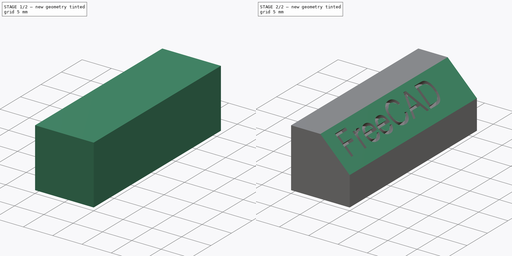
[diagram: build sequence overview — one tinted view per stage of 2, left to right]
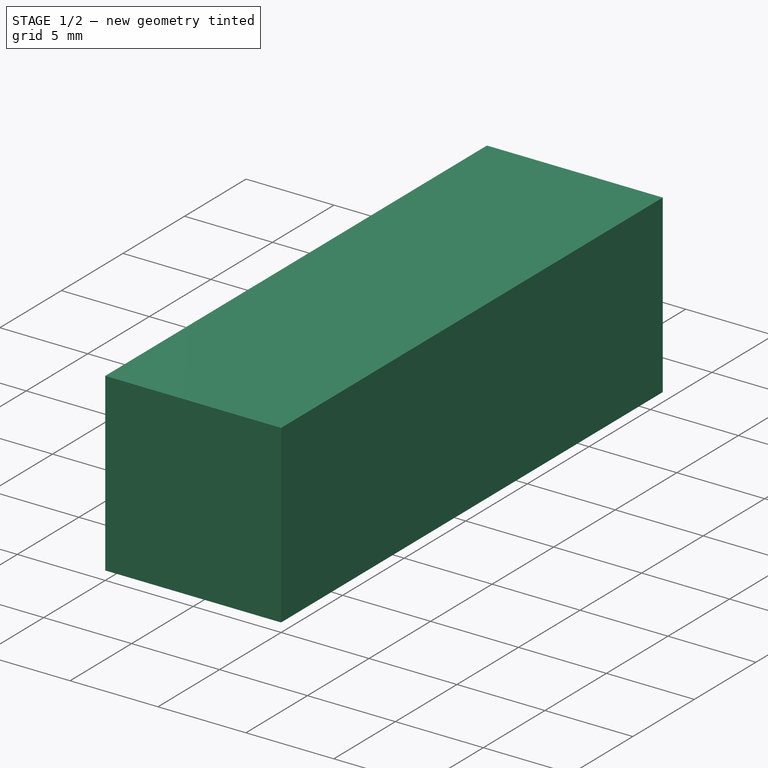
[diagram: stage 1 of 2 — iso view after this stage's code; geometry added in this stage tinted green]
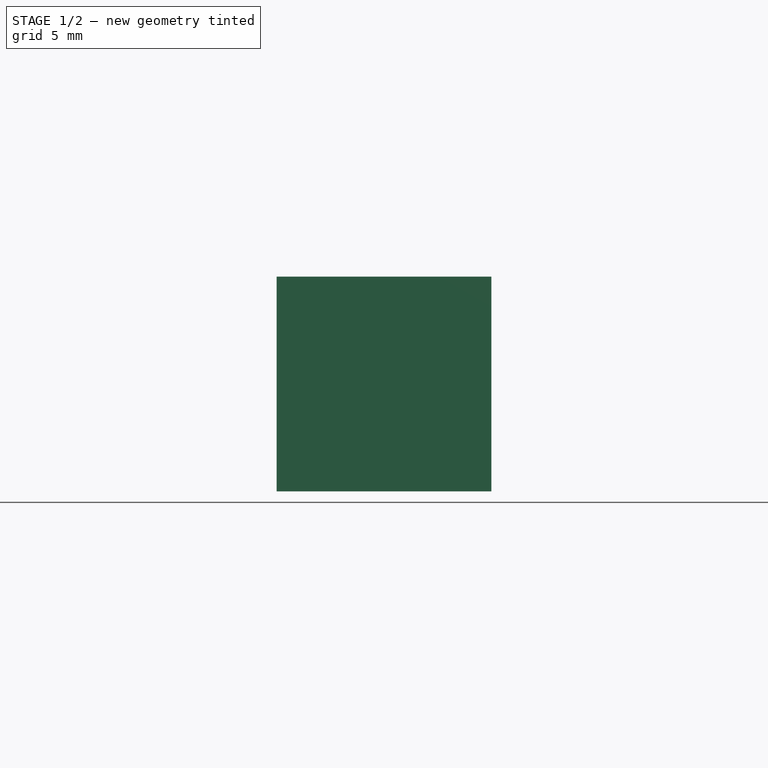
[diagram: stage 1 of 2 — front view after this stage's code; geometry added in this stage tinted green]
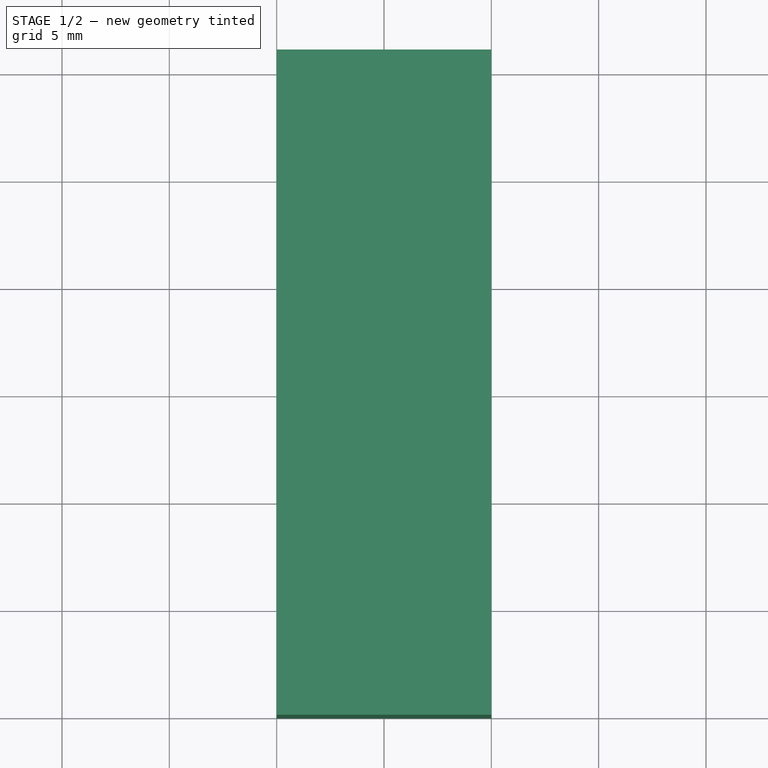
[diagram: stage 1 of 2 — top view after this stage's code; geometry added in this stage tinted green]
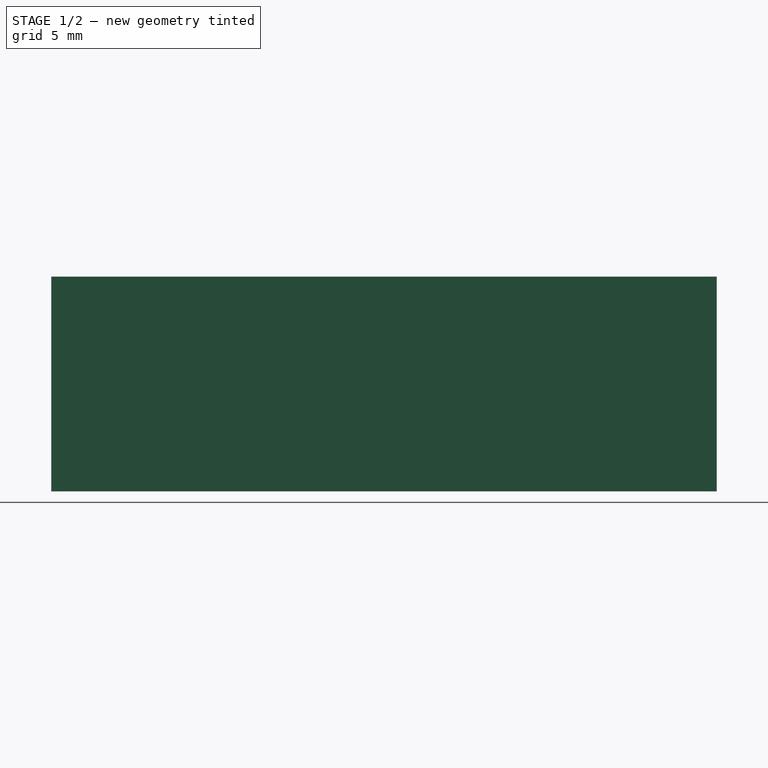
[diagram: stage 1 of 2 — right view after this stage's code; geometry added in this stage tinted green]
FCSTD DOCUMENT  (FreeCAD 0.17R13541 (Git))
Label: 201905191
License: All rights reserved
LicenseURL: http://en.wikipedia.org/wiki/All_rights_reserved
objects: Part::Box×1, Part::Chamfer×1, Part::Part2DObjectPython×1, Part::Extrusion×1, Sketcher::SketchObject×1, Part::Cut×1
note: 6 computed .brp shape members not serialized (recipe doc carries the construction recipe); baked Part::Feature solids carry a one-line shape summary decoded from their .brp

FEATURE [Part::Box] Box  label="立方体"
  AttacherType = Attacher::AttachEngine3D
  Height = 10
  Length = 10
  Width = 31
FEATURE [Part::Part2DObjectPython] ShapeString  # Draft 2D object (typed FeaturePython)
  FontFile = <path>
  Size = 5
  String = FreeCAD
  Tracking = 0
FEATURE [Part::Extrusion] Extrude
  Base = -> ShapeString
  Dir = (0,0,1)
  DirMode = 2
  FaceMakerClass = Part::FaceMakerBullseye
  LengthFwd = 1
  LengthRev = 0
  Placement = pos=(7.82882,2.03353,5.75697) rot=(0.357407,0.357407,0.862856;1.71777rad)
  Solid = true
  Symmetric = false
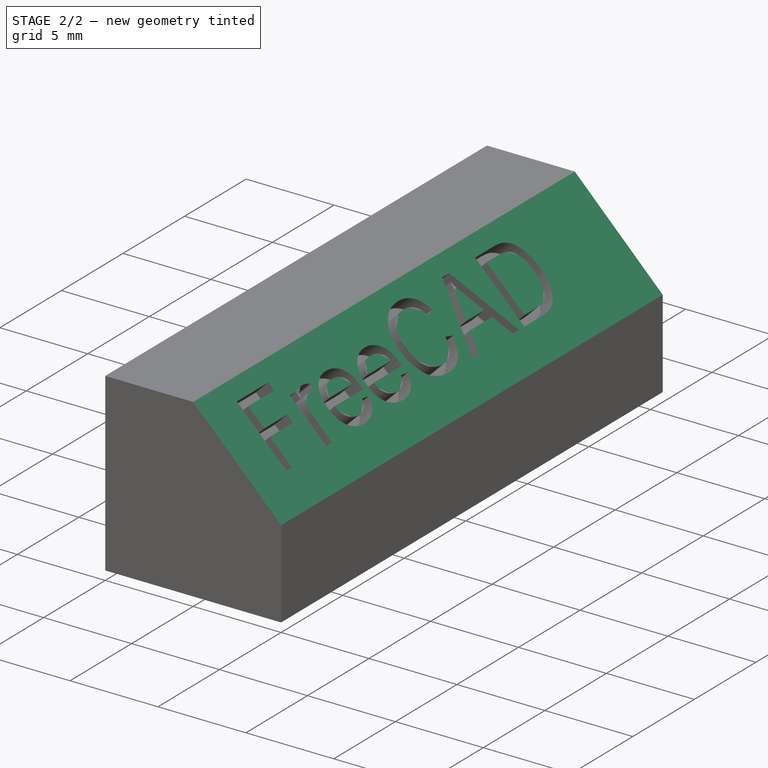
[diagram: stage 2 of 2 — iso view after this stage's code; geometry added in this stage tinted green]
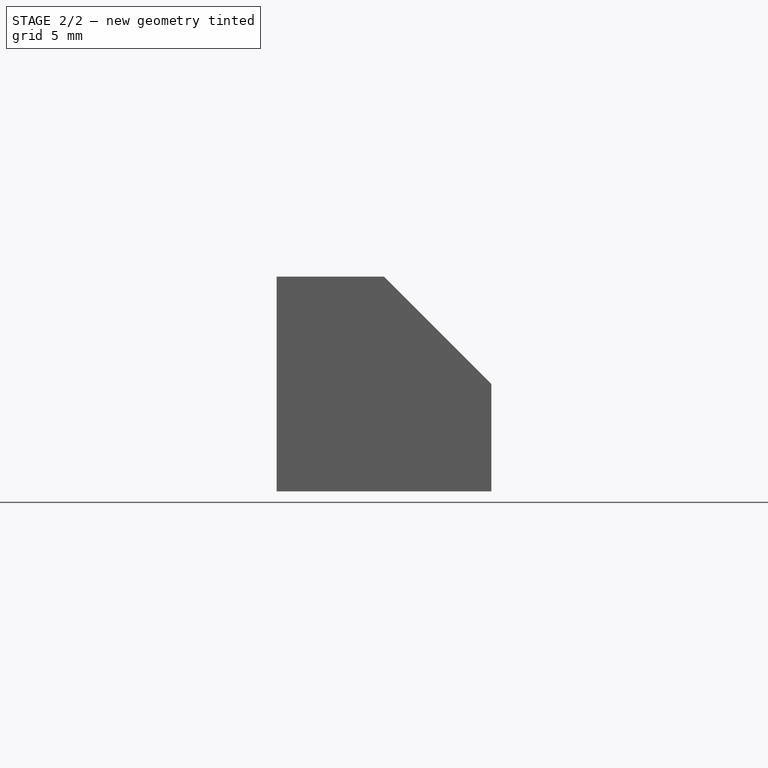
[diagram: stage 2 of 2 — front view after this stage's code; geometry added in this stage tinted green]
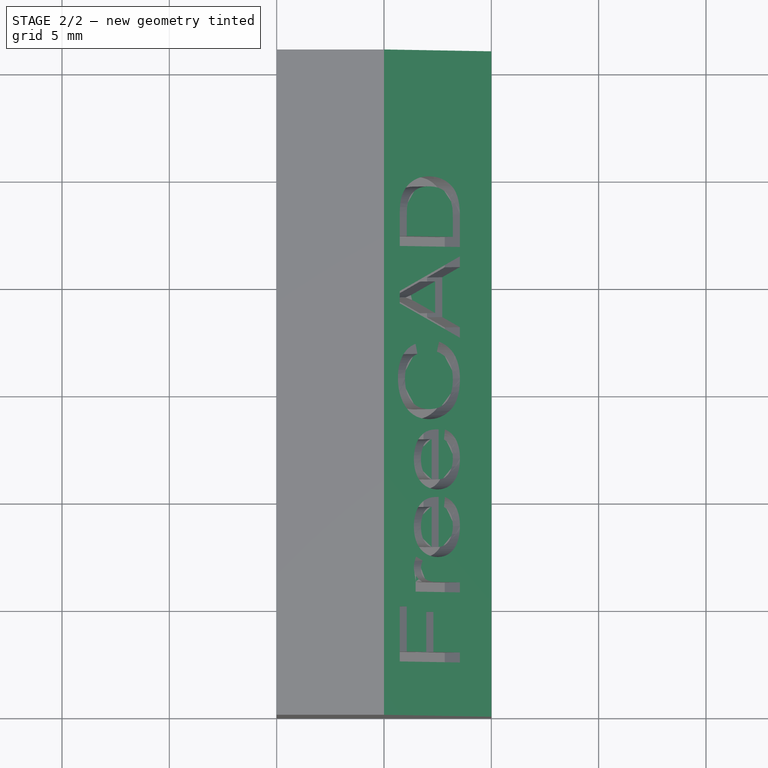
[diagram: stage 2 of 2 — top view after this stage's code; geometry added in this stage tinted green]
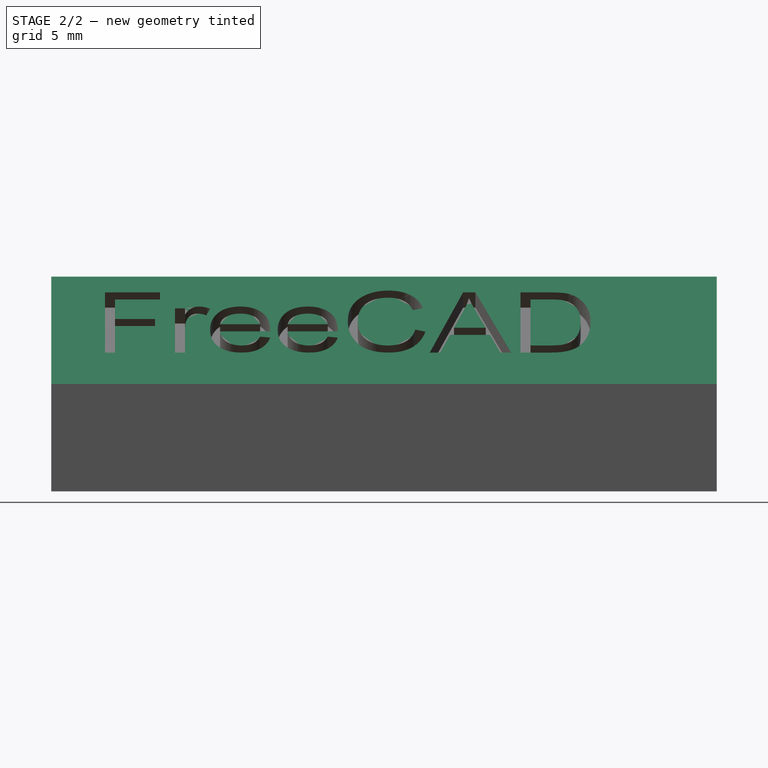
[diagram: stage 2 of 2 — right view after this stage's code; geometry added in this stage tinted green]
FEATURE [Part::Chamfer] Chamfer
  Base = -> Box
  Edges = 1 edges r=5: [Edge6]
FEATURE [Sketcher::SketchObject] Sketch
  MapMode = 5
  Placement = pos=(7.5,0,7.5) rot=(0.357407,0.357407,0.862856;1.71777rad)
  Support = -> [Chamfer]
  sketch-geometry (1):
    g0: LineSegment StartX=2.5 StartY=2.5 StartZ=0 EndX=5.16723 EndY=2.5 EndZ=0
  constraints (3):
    c: Horizontal(g0)
    c: DistanceX(g-1,g0) = 2.5
    c: DistanceY(g-1,g0) = 2.5
FEATURE [Part::Cut] Cut
  Base = -> Chamfer
  Tool = -> Extrude
note: 1 file-system path scrubbed to <path> (originals preserved in the JSON sidecar)
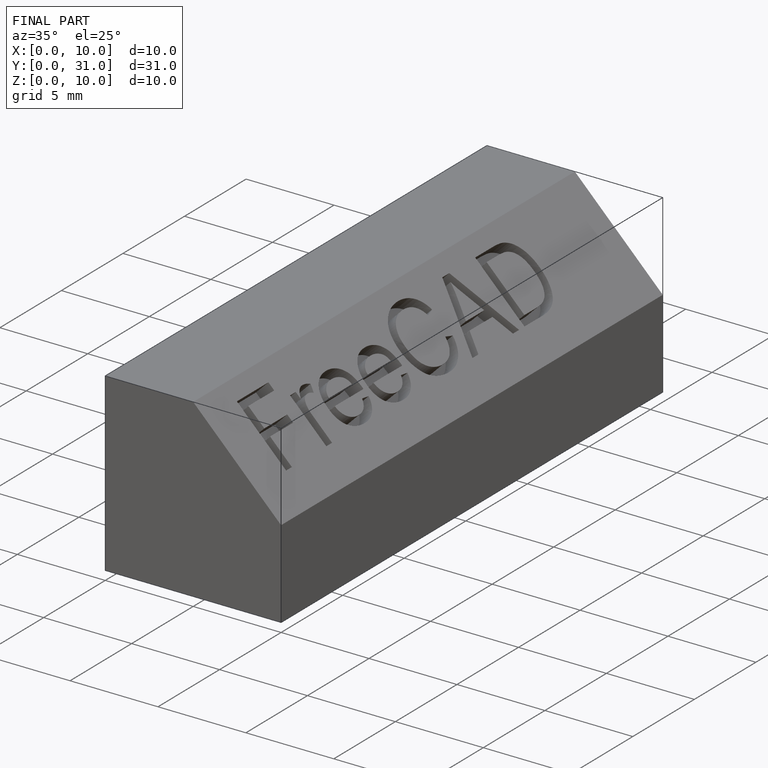
[diagram: finished part — iso view with bounding-box wireframe]
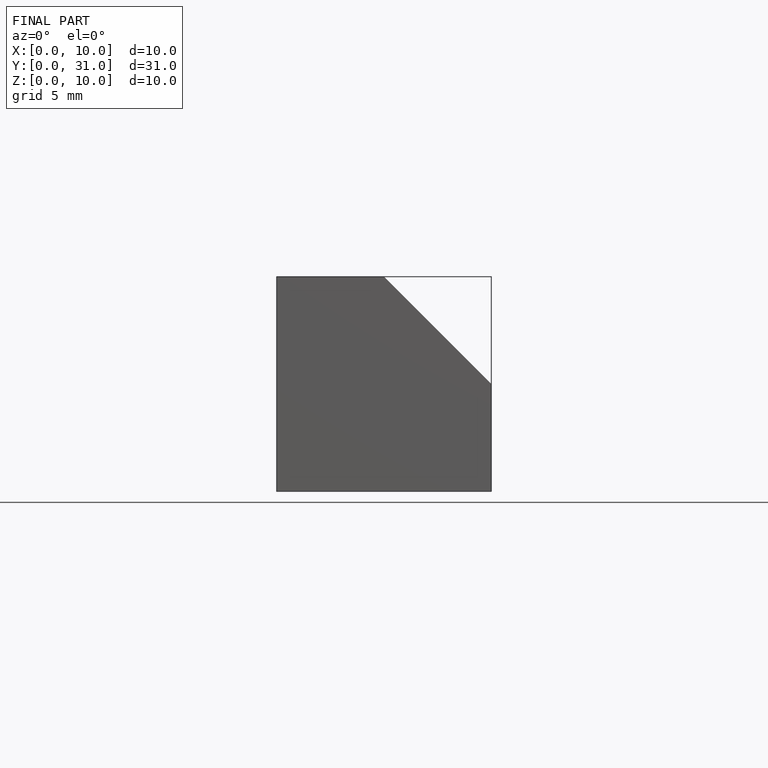
[diagram: finished part — front view with bounding-box wireframe]
